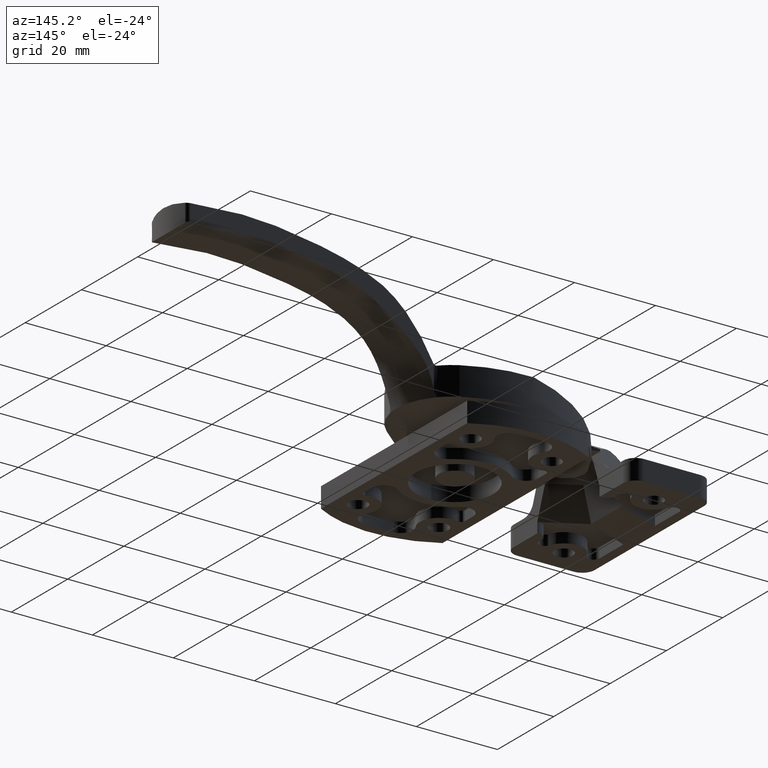
[diagram: clean part render]
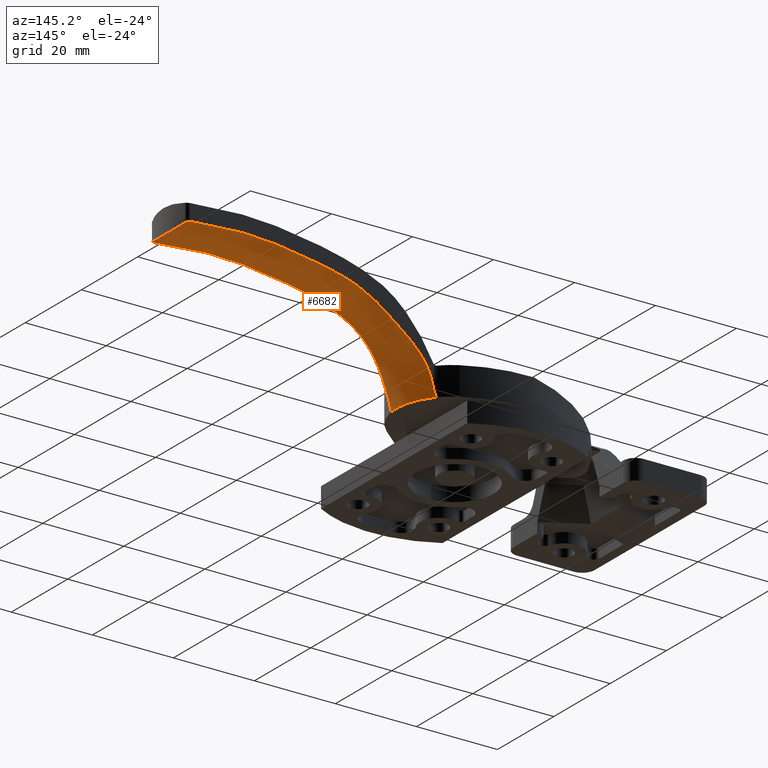
[diagram: same view with one face highlighted and labeled with its STEP entity id]
A machine part, auxiliary view. The second image highlights one B-rep face of the part: STEP entity #6682.
In plain terms, the highlighted face is a freeform B-spline surface patch.
Its self-contained STEP definition (entity closure, byte-faithful):
#4932=CARTESIAN_POINT('',(81.799530053420298,21.879878426017498,29.020201265131700));
#4933=VERTEX_POINT('',#4932);
#4934=CARTESIAN_POINT('',(80.860972180246009,22.487713741084200,29.307454768851098));
#4935=VERTEX_POINT('',#4934);
#4936=CARTESIAN_POINT('',(81.799530053420298,21.879878426017498,29.020201265131700));
#4937=CARTESIAN_POINT('',(81.760981227353696,21.970332895413762,29.050182680863109));
#4938=CARTESIAN_POINT('',(81.710340924425282,22.052974072568020,29.079949348277840));
#4939=CARTESIAN_POINT('',(81.616533039791037,22.165544306079120,29.123896208757891));
#4940=CARTESIAN_POINT('',(81.582081737643961,22.201197568607359,29.138462704300341));
#4941=CARTESIAN_POINT('',(81.509150750982556,22.266320069814569,29.166350664934800));
#4942=CARTESIAN_POINT('',(81.470444523558754,22.296103118384501,29.179790175799969));
#4943=CARTESIAN_POINT('',(81.408974434782465,22.336574926419111,29.199124442122059));
#4944=CARTESIAN_POINT('',(81.387913671884050,22.349362246601110,29.205431186507891));
#4945=CARTESIAN_POINT('',(81.344612890355890,22.373487979565240,29.217750270972601));
#4946=CARTESIAN_POINT('',(81.322273668701555,22.384868293515371,29.223786801371791));
#4947=CARTESIAN_POINT('',(81.254411526538505,22.416285376481710,29.241166216321702));
#4948=CARTESIAN_POINT('',(81.207941880537845,22.433714139366689,29.251825184848201));
#4949=CARTESIAN_POINT('',(81.112558757791916,22.461613587864392,29.271243623499110));
#4950=CARTESIAN_POINT('',(81.063645959581820,22.472086122155329,29.280003740963821));
#4951=CARTESIAN_POINT('',(80.963222592615637,22.485659325675790,29.295466098197569));
#4952=CARTESIAN_POINT('',(80.912149198389955,22.488660602831029,29.302087884052199));
#4953=CARTESIAN_POINT('',(80.860972180246009,22.487713741084200,29.307454768851098));
#4954=B_SPLINE_CURVE_WITH_KNOTS('',3,(#4936,#4937,#4938,#4939,#4940,#4941,#4942,#4943,#4944,#4945,#4946,#4947,#4948,#4949,#4950,#4951,#4952,#4953),.UNSPECIFIED.,.F.,.U.,(4,2,2,2,2,2,2,2,4),(0.0,0.250000000000003,0.375000000000001,0.499999999999998,0.562499999999997,0.624999999999997,0.749999999999998,0.874999999999999,0.999998373961513),.UNSPECIFIED.);
#4955=EDGE_CURVE('',#4933,#4935,#4954,.T.);
#5011=CARTESIAN_POINT('',(80.860971820646995,9.512286265634272,29.307282727309850));
#5012=VERTEX_POINT('',#5011);
#5013=CARTESIAN_POINT('',(81.799530053424490,10.120121573992339,29.020099975869002));
#5014=VERTEX_POINT('',#5013);
#5015=CARTESIAN_POINT('',(80.860971820646995,9.512286265634272,29.307282727309850));
#5016=CARTESIAN_POINT('',(80.963221867046329,9.510394388710735,29.296567377864921));
#5017=CARTESIAN_POINT('',(81.062450017369201,9.523884439569311,29.281239308158341));
#5018=CARTESIAN_POINT('',(81.182936742727335,9.558934499825805,29.256779078056400));
#5019=CARTESIAN_POINT('',(81.206890440248799,9.566897145649270,29.251605666587579));
#5020=CARTESIAN_POINT('',(81.253643641418378,9.584407861842990,29.240900975559651));
#5021=CARTESIAN_POINT('',(81.276543314197227,9.593980998977608,29.235350628578551));
#5022=CARTESIAN_POINT('',(81.343856110783818,9.625083257660752,29.218135299204079));
#5023=CARTESIAN_POINT('',(81.386890417981760,9.648982305320258,29.205908678802871));
#5024=CARTESIAN_POINT('',(81.469323927160886,9.703064695666978,29.180043394041931));
#5025=CARTESIAN_POINT('',(81.508795194345495,9.733392496464512,29.166354036204499));
#5026=CARTESIAN_POINT('',(81.581753480162888,9.798479315668807,29.138478322289970));
#5027=CARTESIAN_POINT('',(81.615571985494711,9.833426006905992,29.124196415468241));
#5028=CARTESIAN_POINT('',(81.677980232785671,9.908073050538729,29.095031735338150));
#5029=CARTESIAN_POINT('',(81.706714202499427,9.948030457222046,29.080058252106891));
#5030=CARTESIAN_POINT('',(81.757849423969148,10.031496104422891,29.050072289181241));
#5031=CARTESIAN_POINT('',(81.780275165843349,10.074940125244360,29.035073928911800));
#5032=CARTESIAN_POINT('',(81.799530053424490,10.120121573992339,29.020099975869002));
#5033=B_SPLINE_CURVE_WITH_KNOTS('',3,(#5015,#5016,#5017,#5018,#5019,#5020,#5021,#5022,#5023,#5024,#5025,#5026,#5027,#5028,#5029,#5030,#5031,#5032),.UNSPECIFIED.,.F.,.U.,(4,2,2,2,2,2,2,2,4),(0.000001619157286,0.249999999999977,0.312499999999980,0.374999999999983,0.499999999999986,0.624999999999990,0.749999999999993,0.874999999999997,1.0),.UNSPECIFIED.);
#5034=EDGE_CURVE('',#5012,#5014,#5033,.T.);
#5090=CARTESIAN_POINT('',(81.799530053424633,10.120121573992311,29.020099975869002));
#5091=CARTESIAN_POINT('',(81.991287089405347,10.570157576312790,28.870630843290289));
#5092=CARTESIAN_POINT('',(82.161721191468004,11.031029257403681,28.736922111889552));
#5093=CARTESIAN_POINT('',(82.458501688908015,11.975481860210239,28.503300483558320));
#5094=CARTESIAN_POINT('',(82.584859079736475,12.459055941503900,28.403374494952882));
#5095=CARTESIAN_POINT('',(82.713353069753197,13.078824484071781,28.301559642959521));
#5096=CARTESIAN_POINT('',(82.737574743611603,13.203545387888781,28.282354098395320));
#5097=CARTESIAN_POINT('',(82.782996875796115,13.454558762937490,28.246319824992860));
#5098=CARTESIAN_POINT('',(82.804157503992059,13.580656690674960,28.229522682369112));
#5099=CARTESIAN_POINT('',(82.862714503661664,13.959185606634390,28.183020452338859));
#5100=CARTESIAN_POINT('',(82.895300566560451,14.212455297789271,28.157114315555511));
#5101=CARTESIAN_POINT('',(82.973663845355929,14.975026259559881,28.094786149213530));
#5102=CARTESIAN_POINT('',(83.000100240903976,15.487119651971360,28.073720514438730));
#5103=CARTESIAN_POINT('',(82.999899189355503,16.518727093693201,28.073880625065922));
#5104=CARTESIAN_POINT('',(82.973274711647079,17.028440453858689,28.095095649959418));
#5105=CARTESIAN_POINT('',(82.869766397366462,18.036342958672009,28.177428365252631));
#5106=CARTESIAN_POINT('',(82.792872818050142,18.534529745058311,28.238554905023960));
#5107=CARTESIAN_POINT('',(82.640634237042050,19.273386770158560,28.359204070113829));
#5108=CARTESIAN_POINT('',(82.583725985085422,19.518266018783880,28.404254444143341));
#5109=CARTESIAN_POINT('',(82.457575098080767,20.005219303651089,28.503941720438739));
#5110=CARTESIAN_POINT('',(82.388143162399345,20.247816299600359,28.558727397071991));
#5111=CARTESIAN_POINT('',(82.163622489588789,20.964093661466411,28.735499321151199));
#5112=CARTESIAN_POINT('',(81.991973768731569,21.428230850774320,28.870180115703651));
#5113=CARTESIAN_POINT('',(81.799530053420298,21.879878426017498,29.020201265131700));
#5114=B_SPLINE_CURVE_WITH_KNOTS('',3,(#5090,#5091,#5092,#5093,#5094,#5095,#5096,#5097,#5098,#5099,#5100,#5101,#5102,#5103,#5104,#5105,#5106,#5107,#5108,#5109,#5110,#5111,#5112,#5113),.UNSPECIFIED.,.F.,.U.,(4,2,2,2,2,2,2,2,2,2,2,4),(0.0,0.125000000000001,0.250000000000002,0.281250000000002,0.312500000000002,0.375000000000001,0.500000000000001,0.625000000000000,0.750000000000000,0.812500000000000,0.874999999999999,1.0),.UNSPECIFIED.);
#5115=EDGE_CURVE('',#5014,#4933,#5114,.T.);
#5195=CARTESIAN_POINT('',(20.165436215506549,21.353610201022200,8.311330445909642));
#5196=VERTEX_POINT('',#5195);
#5202=CARTESIAN_POINT('',(19.476660529880601,21.611194534557349,6.199999999999760));
#5203=VERTEX_POINT('',#5202);
#5204=CARTESIAN_POINT('',(20.165436215506549,21.353610201022200,8.311330445909642));
#5205=CARTESIAN_POINT('',(20.121221977952949,21.352787438105889,8.128054221160355));
#5206=CARTESIAN_POINT('',(20.076226109452559,21.354826843886588,7.945067339260342));
#5207=CARTESIAN_POINT('',(19.982924007024749,21.365841261146020,7.580159138862794));
#5208=CARTESIAN_POINT('',(19.934669746499051,21.374732510873560,7.398148112273264));
#5209=CARTESIAN_POINT('',(19.857184492310950,21.395922249223851,7.126919396716170));
#5210=CARTESIAN_POINT('',(19.830522780999360,21.404305232645200,7.036928322313691));
#5211=CARTESIAN_POINT('',(19.774591163701722,21.424811925135170,6.858210146257458));
#5212=CARTESIAN_POINT('',(19.745359029055582,21.436887191418101,6.769465414549018));
#5213=CARTESIAN_POINT('',(19.698117900982101,21.459575007492528,6.637958290467489));
#5214=CARTESIAN_POINT('',(19.681813468526091,21.467905296071269,6.594449607740731));
#5215=CARTESIAN_POINT('',(19.647725399035838,21.486658466786370,6.508673247423070));
#5216=CARTESIAN_POINT('',(19.629942042224009,21.497069609660400,6.466358793612938));
#5217=CARTESIAN_POINT('',(19.592019374779301,21.521134379121332,6.383544519885958));
#5218=CARTESIAN_POINT('',(19.571775304495969,21.534838567202961,6.342746642678847));
#5219=CARTESIAN_POINT('',(19.538800969302201,21.559376195259048,6.285313868485862));
#5220=CARTESIAN_POINT('',(19.527372706655289,21.568223081873260,6.266804312848052));
#5221=CARTESIAN_POINT('',(19.503208473547328,21.587903038491628,6.231678716443716));
#5222=CARTESIAN_POINT('',(19.490491816460189,21.598707289368519,6.215034979167809));
#5223=CARTESIAN_POINT('',(19.476660529880601,21.611194534557349,6.199999999999760));
#5224=B_SPLINE_CURVE_WITH_KNOTS('',3,(#5204,#5205,#5206,#5207,#5208,#5209,#5210,#5211,#5212,#5213,#5214,#5215,#5216,#5217,#5218,#5219,#5220,#5221,#5222,#5223),.UNSPECIFIED.,.F.,.U.,(4,2,2,2,2,2,2,2,2,4),(0.0,0.249999999999998,0.499999999999997,0.624999999999997,0.749999999999996,0.812499999999997,0.874999999999998,0.937499999999999,0.968749999999999,1.0),.UNSPECIFIED.);
#5225=EDGE_CURVE('',#5196,#5203,#5224,.T.);
#5266=CARTESIAN_POINT('',(22.844383890592649,9.935007135742980,6.199999999999760));
#5267=VERTEX_POINT('',#5266);
#5281=CARTESIAN_POINT('',(23.797038948920950,10.578533195955560,8.846641809814191));
#5282=VERTEX_POINT('',#5281);
#5283=CARTESIAN_POINT('',(22.844383890592649,9.935007135742980,6.199999999999760));
#5284=CARTESIAN_POINT('',(22.862671922049159,9.982946944928033,6.236551867924699));
#5285=CARTESIAN_POINT('',(22.881878126794721,10.022844524131431,6.279192991285920));
#5286=CARTESIAN_POINT('',(22.921179892667130,10.094637550729990,6.370544621492238));
#5287=CARTESIAN_POINT('',(22.941302990605308,10.126301793843490,6.419429693486638));
#5288=CARTESIAN_POINT('',(22.982150316825940,10.184167490034300,6.521345802297041));
#5289=CARTESIAN_POINT('',(23.002574547283491,10.209898956255961,6.573645682171861));
#5290=CARTESIAN_POINT('',(23.043226353650081,10.256819336267821,6.679539466171257));
#5291=CARTESIAN_POINT('',(23.063494506704661,10.278035024012370,6.733246948399775));
#5292=CARTESIAN_POINT('',(23.124177462832520,10.336687626542650,6.896059277170288));
#5293=CARTESIAN_POINT('',(23.164472588317260,10.369211859009880,7.006826396441882));
#5294=CARTESIAN_POINT('',(23.244913767517001,10.425605389118299,7.231266378641605));
#5295=CARTESIAN_POINT('',(23.285142721395118,10.449434087097391,7.345209852808034));
#5296=CARTESIAN_POINT('',(23.405090125713130,10.510495560030680,7.688409469175864));
#5297=CARTESIAN_POINT('',(23.484004238284751,10.537563394837109,7.918729916863612));
#5298=CARTESIAN_POINT('',(23.641002401836161,10.572371181176640,8.381301151216215));
#5299=CARTESIAN_POINT('',(23.719068812972409,10.579928302589909,8.613573532696430));
#5300=CARTESIAN_POINT('',(23.797038948920950,10.578533195955560,8.846641809814191));
#5301=B_SPLINE_CURVE_WITH_KNOTS('',3,(#5283,#5284,#5285,#5286,#5287,#5288,#5289,#5290,#5291,#5292,#5293,#5294,#5295,#5296,#5297,#5298,#5299,#5300),.UNSPECIFIED.,.F.,.U.,(4,2,2,2,2,2,2,2,4),(0.0,0.062500000000000,0.124999999999999,0.187499999999999,0.249999999999998,0.374999999999998,0.499999999999998,0.749999999999999,1.0),.UNSPECIFIED.);
#5302=EDGE_CURVE('',#5267,#5282,#5301,.T.);
#6147=CARTESIAN_POINT('',(19.706569114936499,21.345036212919801,6.200000000000090));
#6148=VERTEX_POINT('',#6147);
#6149=CARTESIAN_POINT('',(22.930462412194451,10.594725290079920,6.200000000000090));
#6150=VERTEX_POINT('',#6149);
#6151=CARTESIAN_POINT('',(19.706569114936499,21.345036212919801,6.200000000000090));
#6152=CARTESIAN_POINT('',(22.244814176507148,18.404848201389012,6.200000000000090));
#6153=CARTESIAN_POINT('',(23.433030752303910,14.446324775911339,6.200000000000090));
#6154=CARTESIAN_POINT('',(22.930462412194451,10.594725290079920,6.200000000000090));
#6155=B_SPLINE_CURVE_WITH_KNOTS('',3,(#6151,#6152,#6153,#6154),.UNSPECIFIED.,.F.,.U.,(4,4),(0.0,11.652748251877521),.UNSPECIFIED.);
#6156=EDGE_CURVE('',#6148,#6150,#6155,.T.);
#6158=CARTESIAN_POINT('',(22.930462412194451,10.594725290079920,6.200000000000090));
#6159=CARTESIAN_POINT('',(22.901769571660338,10.374819238634281,6.199999999999124));
#6160=CARTESIAN_POINT('',(22.873076731126439,10.154913187188630,6.199999999999124));
#6161=CARTESIAN_POINT('',(22.844383890592649,9.935007135742980,6.199999999999760));
#6162=B_SPLINE_CURVE_WITH_KNOTS('',3,(#6158,#6159,#6160,#6161),.UNSPECIFIED.,.F.,.U.,(4,4),(-0.057120785289165,0.0),.UNSPECIFIED.);
#6163=EDGE_CURVE('',#6150,#5267,#6162,.T.);
#6232=CARTESIAN_POINT('',(19.706569114936499,21.345036212919801,6.200000000000090));
#6233=CARTESIAN_POINT('',(19.629932919917291,21.433755653466250,6.199999999999385));
#6234=CARTESIAN_POINT('',(19.553296724898939,21.522475094011789,6.199999999999386));
#6235=CARTESIAN_POINT('',(19.476660529880601,21.611194534557349,6.199999999999760));
#6236=B_SPLINE_CURVE_WITH_KNOTS('',3,(#6232,#6233,#6234,#6235),.UNSPECIFIED.,.F.,.U.,(4,4),(1.0,1.030196162039448),.UNSPECIFIED.);
#6237=EDGE_CURVE('',#6148,#5203,#6236,.T.);
#6286=CARTESIAN_POINT('',(68.0,22.247404897172999,30.199999999999999));
#6287=VERTEX_POINT('',#6286);
#6288=CARTESIAN_POINT('',(80.860972180246009,22.487713741084200,29.307454768851098));
#6289=CARTESIAN_POINT('',(76.583796074107710,22.407794180504659,29.758708079189670));
#6290=CARTESIAN_POINT('',(72.303347901655741,22.327813480964430,30.158707070666100));
#6291=CARTESIAN_POINT('',(68.0,22.247404897172999,30.199999999999999));
#6292=B_SPLINE_CURVE_WITH_KNOTS('',3,(#6288,#6289,#6290,#6291),.UNSPECIFIED.,.F.,.U.,(4,4),(0.030343809796675,0.212362758187019),.UNSPECIFIED.);
#6293=EDGE_CURVE('',#4935,#6287,#6292,.T.);
#6295=CARTESIAN_POINT('',(59.477998425016509,22.088170251642950,29.839830530242850));
#6296=VERTEX_POINT('',#6295);
#6297=CARTESIAN_POINT('',(68.0,22.247404897172999,30.199999999999999));
#6298=CARTESIAN_POINT('',(65.152406536362562,22.194197263754258,30.227134427263930));
#6299=CARTESIAN_POINT('',(62.294786164252208,22.140802276319810,30.097205263357129));
#6300=CARTESIAN_POINT('',(59.477998425016438,22.088170251642978,29.839830530242850));
#6301=B_SPLINE_CURVE_WITH_KNOTS('',3,(#6297,#6298,#6299,#6300),.UNSPECIFIED.,.F.,.U.,(4,4),(0.212362758187019,0.332806734089926),.UNSPECIFIED.);
#6302=EDGE_CURVE('',#6287,#6296,#6301,.T.);
#6304=CARTESIAN_POINT('',(48.322013162826799,21.879719297588000,28.264508447960601));
#6305=VERTEX_POINT('',#6304);
#6306=CARTESIAN_POINT('',(59.477998425016459,22.088170251642978,29.839830530242850));
#6307=CARTESIAN_POINT('',(55.760450756311812,22.018707417112999,29.500151815462569));
#6308=CARTESIAN_POINT('',(52.114026442255962,21.950573531195261,28.938485053891320));
#6309=CARTESIAN_POINT('',(48.322013162826799,21.879719297588000,28.264508447960601));
#6310=B_SPLINE_CURVE_WITH_KNOTS('',3,(#6306,#6307,#6308,#6309),.UNSPECIFIED.,.F.,.U.,(4,4),(0.332806734089926,0.491766607278214),.UNSPECIFIED.);
#6311=EDGE_CURVE('',#6296,#6305,#6310,.T.);
#6313=CARTESIAN_POINT('',(39.153788114213953,21.708409887127250,25.980882600756399));
#6314=VERTEX_POINT('',#6313);
#6315=CARTESIAN_POINT('',(48.322013162826799,21.879719297588000,28.264508447960601));
#6316=CARTESIAN_POINT('',(45.209232653504358,21.821556611668061,27.711255838308290));
#6317=CARTESIAN_POINT('',(41.998348360513369,21.761560844507720,27.082324274233031));
#6318=CARTESIAN_POINT('',(39.153788114213953,21.708409887127250,25.980882600756399));
#6319=B_SPLINE_CURVE_WITH_KNOTS('',3,(#6315,#6316,#6317,#6318),.UNSPECIFIED.,.F.,.U.,(4,4),(0.491766607278214,0.622253279808823),.UNSPECIFIED.);
#6320=EDGE_CURVE('',#6305,#6314,#6319,.T.);
#6322=CARTESIAN_POINT('',(29.761765893005752,21.532918799024849,20.360756911795399));
#6323=VERTEX_POINT('',#6322);
#6324=CARTESIAN_POINT('',(39.153788114213938,21.708409887127232,25.980882600756370));
#6325=CARTESIAN_POINT('',(35.878215650933193,21.647205413564389,24.712548762426490));
#6326=CARTESIAN_POINT('',(33.088389573978183,21.595077170856939,22.817665615586861));
#6327=CARTESIAN_POINT('',(29.761765893005752,21.532918799024849,20.360756911795399));
#6328=B_SPLINE_CURVE_WITH_KNOTS('',3,(#6324,#6325,#6326,#6327),.UNSPECIFIED.,.F.,.U.,(4,4),(0.622253279808823,0.772511497022479),.UNSPECIFIED.);
#6329=EDGE_CURVE('',#6314,#6323,#6328,.T.);
#6331=CARTESIAN_POINT('',(22.123107437368049,21.390189528112799,13.200000000001200));
#6332=VERTEX_POINT('',#6331);
#6333=CARTESIAN_POINT('',(29.761765893005752,21.532918799024849,20.360756911795399));
#6334=CARTESIAN_POINT('',(26.998680012481682,21.481290200170111,18.320054265441851));
#6335=CARTESIAN_POINT('',(23.865261496043640,21.422741890553830,15.891614407892600));
#6336=CARTESIAN_POINT('',(22.123107437368049,21.390189528112799,13.200000000001200));
#6337=B_SPLINE_CURVE_WITH_KNOTS('',3,(#6333,#6334,#6335,#6336),.UNSPECIFIED.,.F.,.U.,(4,4),(0.772511497022479,0.897315622235051),.UNSPECIFIED.);
#6338=EDGE_CURVE('',#6323,#6332,#6337,.T.);
#6340=CARTESIAN_POINT('',(22.123107437368049,21.390189528112799,13.200000000001200));
#6341=CARTESIAN_POINT('',(21.112256259296391,21.371301649765460,11.638219131775269));
#6342=CARTESIAN_POINT('',(20.569810379581540,21.361165981916098,9.987833753725743));
#6343=CARTESIAN_POINT('',(20.165436215506549,21.353610201022200,8.311330445909642));
#6344=B_SPLINE_CURVE_WITH_KNOTS('',3,(#6340,#6341,#6342,#6343),.UNSPECIFIED.,.F.,.U.,(4,4),(0.897315622235051,0.969731750991813),.UNSPECIFIED.);
#6345=EDGE_CURVE('',#6332,#5196,#6344,.T.);
#6412=CARTESIAN_POINT('',(25.380125769199850,10.548953014961819,13.200000000001200));
#6413=VERTEX_POINT('',#6412);
#6414=CARTESIAN_POINT('',(25.380125769199850,10.548953014961819,13.200000000001200));
#6415=CARTESIAN_POINT('',(24.812998627737489,10.559549858594160,11.804744545008370));
#6416=CARTESIAN_POINT('',(24.295785172899159,10.569214058567621,10.338774741653920));
#6417=CARTESIAN_POINT('',(23.797038948920950,10.578533195955560,8.846641809814191));
#6418=B_SPLINE_CURVE_WITH_KNOTS('',3,(#6414,#6415,#6416,#6417),.UNSPECIFIED.,.F.,.U.,(4,4),(0.935307127935637,1.000000000000000),.UNSPECIFIED.);
#6419=EDGE_CURVE('',#6413,#5282,#6418,.T.);
#6421=CARTESIAN_POINT('',(29.761765893008899,10.467081505294120,20.360756911797750));
#6422=VERTEX_POINT('',#6421);
#6423=CARTESIAN_POINT('',(29.761765893008949,10.467081505294100,20.360756911797768));
#6424=CARTESIAN_POINT('',(27.754551199629091,10.504586570185481,18.320054265446512));
#6425=CARTESIAN_POINT('',(26.474463673924468,10.528505170361420,15.891614407896240));
#6426=CARTESIAN_POINT('',(25.380125769199850,10.548953014961819,13.200000000001200));
#6427=B_SPLINE_CURVE_WITH_KNOTS('',3,(#6423,#6424,#6425,#6426),.UNSPECIFIED.,.F.,.U.,(4,4),(0.772511497022479,0.897315622235051),.UNSPECIFIED.);
#6428=EDGE_CURVE('',#6422,#6413,#6427,.T.);
#6430=CARTESIAN_POINT('',(39.153788114213953,10.291590361257860,25.980882600756349));
#6431=VERTEX_POINT('',#6430);
#6432=CARTESIAN_POINT('',(39.153788114213938,10.291590361257880,25.980882600756370));
#6433=CARTESIAN_POINT('',(35.648919212317331,10.357079287796219,24.712548762427499));
#6434=CARTESIAN_POINT('',(32.178356697829017,10.421927195070280,22.817665615589881));
#6435=CARTESIAN_POINT('',(29.761765893008949,10.467081505294100,20.360756911797768));
#6436=B_SPLINE_CURVE_WITH_KNOTS('',3,(#6432,#6433,#6434,#6435),.UNSPECIFIED.,.F.,.U.,(4,4),(0.622253279808823,0.772511497022479),.UNSPECIFIED.);
#6437=EDGE_CURVE('',#6431,#6422,#6436,.T.);
#6439=CARTESIAN_POINT('',(48.322013162828092,10.120280896196039,28.264508447960850));
#6440=VERTEX_POINT('',#6439);
#6441=CARTESIAN_POINT('',(48.322013162828107,10.120280896196030,28.264508447960839));
#6442=CARTESIAN_POINT('',(45.267030148031203,10.177363647029789,27.711255838308769));
#6443=CARTESIAN_POINT('',(42.197473106258002,10.234718715433420,27.082324274233589));
#6444=CARTESIAN_POINT('',(39.153788114213938,10.291590361257880,25.980882600756370));
#6445=B_SPLINE_CURVE_WITH_KNOTS('',3,(#6441,#6442,#6443,#6444),.UNSPECIFIED.,.F.,.U.,(4,4),(0.491766607278214,0.622253279808823),.UNSPECIFIED.);
#6446=EDGE_CURVE('',#6440,#6431,#6445,.T.);
#6448=CARTESIAN_POINT('',(59.477998425016509,9.911829875701960,29.839830530242850));
#6449=VERTEX_POINT('',#6448);
#6450=CARTESIAN_POINT('',(59.477998425016473,9.911829875701953,29.839830530242850));
#6451=CARTESIAN_POINT('',(55.743592718098249,9.981607726985459,29.500151815462669));
#6452=CARTESIAN_POINT('',(52.043617087631830,10.050742247859020,28.938485053891629));
#6453=CARTESIAN_POINT('',(48.322013162828107,10.120280896196030,28.264508447960839));
#6454=B_SPLINE_CURVE_WITH_KNOTS('',3,(#6450,#6451,#6452,#6453),.UNSPECIFIED.,.F.,.U.,(4,4),(0.332806734089926,0.491766607278214),.UNSPECIFIED.);
#6455=EDGE_CURVE('',#6449,#6440,#6454,.T.);
#6457=CARTESIAN_POINT('',(68.0,9.752595179419391,30.199999999999999));
#6458=VERTEX_POINT('',#6457);
#6459=CARTESIAN_POINT('',(67.999999999999929,9.752595179419384,30.200000000000081));
#6460=CARTESIAN_POINT('',(65.156887244565169,9.805719107187448,30.227134427263930));
#6461=CARTESIAN_POINT('',(62.307559508290382,9.858959162672431,30.097205263357129));
#6462=CARTESIAN_POINT('',(59.477998425016473,9.911829875701953,29.839830530242850));
#6463=B_SPLINE_CURVE_WITH_KNOTS('',3,(#6459,#6460,#6461,#6462),.UNSPECIFIED.,.F.,.U.,(4,4),(0.212362758187019,0.332806734089926),.UNSPECIFIED.);
#6464=EDGE_CURVE('',#6458,#6449,#6463,.T.);
#6466=CARTESIAN_POINT('',(80.860971820646995,9.512286265634272,29.307282727309850));
#6467=CARTESIAN_POINT('',(76.580065164025683,9.592275557502292,29.758606863402360));
#6468=CARTESIAN_POINT('',(72.297131419844973,9.672302725762268,30.158703068793660));
#6469=CARTESIAN_POINT('',(68.0,9.752595179419391,30.199999999999999));
#6470=B_SPLINE_CURVE_WITH_KNOTS('',3,(#6466,#6467,#6468,#6469),.UNSPECIFIED.,.F.,.U.,(4,4),(0.0,0.182042449750971),.UNSPECIFIED.);
#6471=EDGE_CURVE('',#5012,#6458,#6470,.T.);
#6587=CARTESIAN_POINT('',(83.352669534013160,8.660384540932622,29.297540367865420));
#6588=CARTESIAN_POINT('',(83.352685486915590,8.928832253592155,29.212380156891939));
#6589=CARTESIAN_POINT('',(83.352701439818034,9.197279966251694,29.127219945918469));
#6590=CARTESIAN_POINT('',(83.352968764263650,13.695681769201940,27.700181771627570));
#6591=CARTESIAN_POINT('',(83.352861913578110,18.473615638115461,27.700217382679021));
#6592=CARTESIAN_POINT('',(83.352406784752191,22.844663545724782,29.141478786425349));
#6593=CARTESIAN_POINT('',(83.352391303836072,23.000230812629230,29.189881138469691));
#6594=CARTESIAN_POINT('',(78.242219031294653,8.768201618355205,29.844977345066791));
#6595=CARTESIAN_POINT('',(78.242004190413539,9.032544426086000,29.760160470131400));
#6596=CARTESIAN_POINT('',(78.241789349532340,9.296887233816786,29.675343595196040));
#6597=CARTESIAN_POINT('',(78.238189238535924,13.726502791585141,28.254058737241021));
#6598=CARTESIAN_POINT('',(78.239628217777607,18.439411887138441,28.254094204721230));
#6599=CARTESIAN_POINT('',(78.245757527377592,22.744570733443538,29.689544949069749));
#6600=CARTESIAN_POINT('',(78.245966011925987,22.897805832433392,29.737752159843410));
#6601=CARTESIAN_POINT('',(70.300809676333074,8.935751867118151,30.714460938033099));
#6602=CARTESIAN_POINT('',(70.300210195789518,9.193713864277658,30.630178942893949));
#6603=CARTESIAN_POINT('',(70.299610715246075,9.451675861437172,30.545896947754859));
#6604=CARTESIAN_POINT('',(70.289565157410777,13.774367627153060,29.133575124052410));
#6605=CARTESIAN_POINT('',(70.293580408387996,18.386166554030599,29.133610367864410));
#6606=CARTESIAN_POINT('',(70.310683307197735,22.589045436099600,30.560008743775001));
#6607=CARTESIAN_POINT('',(70.311265051369062,22.738659982049199,30.607911945905361));
#6608=CARTESIAN_POINT('',(58.542997850578558,9.183105081542546,30.176590904864810));
#6609=CARTESIAN_POINT('',(58.544353938759123,9.431811542938787,30.092969604361869));
#6610=CARTESIAN_POINT('',(58.545710026939780,9.680518004335026,30.009348303858921));
#6611=CARTESIAN_POINT('',(58.568434137665022,13.848113974227520,28.608097806267448));
#6612=CARTESIAN_POINT('',(58.559351216707157,18.316487492418901,28.608132773799831));
#6613=CARTESIAN_POINT('',(58.520662656783671,22.357379325293198,30.023349476157819));
#6614=CARTESIAN_POINT('',(58.519346690146492,22.501290460081488,30.070877160496369));
#6615=CARTESIAN_POINT('',(49.026005629185100,9.389861526265932,28.745084594130802));
#6616=CARTESIAN_POINT('',(49.019466507843497,9.629072103951971,28.655864773268799));
#6617=CARTESIAN_POINT('',(49.012927386501822,9.868282681638004,28.566644952406840));
#6618=CARTESIAN_POINT('',(48.903350649872401,13.876755323223939,27.071579489110832));
#6619=CARTESIAN_POINT('',(48.947148924297970,18.247454361368309,27.071616797750568));
#6620=CARTESIAN_POINT('',(49.133706989982990,22.173593530821812,28.581583515629990));
#6621=CARTESIAN_POINT('',(49.140052643344802,22.313471546944651,28.632293220659250));
#6622=CARTESIAN_POINT('',(38.600741898686501,9.594058833581601,26.585860286409549));
#6623=CARTESIAN_POINT('',(38.621431926190098,9.829627326886438,26.509938862945351));
#6624=CARTESIAN_POINT('',(38.642121953693717,10.065195820191290,26.434017439481110));
#6625=CARTESIAN_POINT('',(38.988826897090298,14.012637782858000,25.161794551685691));
#6626=CARTESIAN_POINT('',(38.850247498554850,18.233639986637609,25.161826299396100));
#6627=CARTESIAN_POINT('',(38.259970715424927,21.957169736397692,26.446729379198690));
#6628=CARTESIAN_POINT('',(38.239892827934462,22.089968593423801,26.489880698626148));
#6629=CARTESIAN_POINT('',(29.066868799216252,9.836186519868557,21.496329457453410));
#6630=CARTESIAN_POINT('',(29.143151051906489,10.049387585179611,21.412146334286820));
#6631=CARTESIAN_POINT('',(29.219433304596730,10.262588650490640,21.327963211120242));
#6632=CARTESIAN_POINT('',(30.497702306265300,13.835217422041771,19.917298194952391));
#6633=CARTESIAN_POINT('',(31.062670362505688,17.914653729625339,19.917333397419540));
#6634=CARTESIAN_POINT('',(30.750696320617362,21.829402169915770,21.342058452464549));
#6635=CARTESIAN_POINT('',(30.741256590619070,21.968362837769629,21.389905458914221));
#6636=CARTESIAN_POINT('',(25.295614776588451,9.787717648618079,13.745904464430071));
#6637=CARTESIAN_POINT('',(25.320370141412418,10.041526579812750,13.762643831793101));
#6638=CARTESIAN_POINT('',(25.345125506236421,10.295335511007449,13.779383199156131));
#6639=CARTESIAN_POINT('',(25.759954593829011,14.548434739037960,14.059886452582440));
#6640=CARTESIAN_POINT('',(24.148392663566021,18.725036548203459,14.059879452758629));
#6641=CARTESIAN_POINT('',(20.936922458136621,21.576691154849819,13.776580435204661));
#6642=CARTESIAN_POINT('',(20.826111637415419,21.680128056957589,13.767066311850060));
#6643=CARTESIAN_POINT('',(23.539574705566569,9.841189499914059,8.345995541439866));
#6644=CARTESIAN_POINT('',(23.569660507315010,10.088012159024840,8.350288846568214));
#6645=CARTESIAN_POINT('',(23.599746309063509,10.334834818135651,8.354582151696551));
#6646=CARTESIAN_POINT('',(24.103897897359619,14.470864346706470,8.426525495213285));
#6647=CARTESIAN_POINT('',(22.774151414705312,18.597592959877339,8.426523699901741));
#6648=CARTESIAN_POINT('',(19.955525940509322,21.565783544132739,8.353863300106442));
#6649=CARTESIAN_POINT('',(19.858425598088310,21.673042530654211,8.351423122189068));
#6650=CARTESIAN_POINT('',(22.720591085595359,9.865092023730822,5.851975799048398));
#6651=CARTESIAN_POINT('',(22.752763497530221,10.109009124439231,5.851274104184835));
#6652=CARTESIAN_POINT('',(22.784935909465069,10.352926225147639,5.850572409321274));
#6653=CARTESIAN_POINT('',(23.324052967351239,14.440267005574690,5.838814038298463));
#6654=CARTESIAN_POINT('',(22.108097077727631,18.545031272370711,5.838814331722959));
#6655=CARTESIAN_POINT('',(19.448946563282309,21.559242238707860,5.850689897935142));
#6656=CARTESIAN_POINT('',(19.357410853021150,21.668006410201532,5.851088718950563));
#6657=B_SPLINE_SURFACE_WITH_KNOTS('',3,3,((#6587,#6594,#6601,#6608,#6615,#6622,#6629,#6636,#6643,#6650),(#6588,#6595,#6602,#6609,#6616,#6623,#6630,#6637,#6644,#6651),(#6589,#6596,#6603,#6610,#6617,#6624,#6631,#6638,#6645,#6652),(#6590,#6597,#6604,#6611,#6618,#6625,#6632,#6639,#6646,#6653),(#6591,#6598,#6605,#6612,#6619,#6626,#6633,#6640,#6647,#6654),(#6592,#6599,#6606,#6613,#6620,#6627,#6634,#6641,#6648,#6655),(#6593,#6600,#6607,#6614,#6621,#6628,#6635,#6642,#6649,#6656)),.UNSPECIFIED.,.F.,.F.,.U.,(4,2,1,4),(4,1,1,1,1,1,1,4),(0.0,0.844063686718663,14.144047988038650,14.632424259103660),(0.0,17.848867852486318,27.739192226203759,40.792271024470303,51.507257042659518,63.845794498924953,74.094154969235447,82.937427523136222),.UNSPECIFIED.);
#6658=ORIENTED_EDGE('',*,*,#6471,.T.);
#6659=ORIENTED_EDGE('',*,*,#6464,.T.);
#6660=ORIENTED_EDGE('',*,*,#6455,.T.);
#6661=ORIENTED_EDGE('',*,*,#6446,.T.);
#6662=ORIENTED_EDGE('',*,*,#6437,.T.);
#6663=ORIENTED_EDGE('',*,*,#6428,.T.);
#6664=ORIENTED_EDGE('',*,*,#6419,.T.);
#6665=ORIENTED_EDGE('',*,*,#5302,.F.);
#6666=ORIENTED_EDGE('',*,*,#6163,.F.);
#6667=ORIENTED_EDGE('',*,*,#6156,.F.);
#6668=ORIENTED_EDGE('',*,*,#6237,.T.);
#6669=ORIENTED_EDGE('',*,*,#5225,.F.);
#6670=ORIENTED_EDGE('',*,*,#6345,.F.);
#6671=ORIENTED_EDGE('',*,*,#6338,.F.);
#6672=ORIENTED_EDGE('',*,*,#6329,.F.);
#6673=ORIENTED_EDGE('',*,*,#6320,.F.);
#6674=ORIENTED_EDGE('',*,*,#6311,.F.);
#6675=ORIENTED_EDGE('',*,*,#6302,.F.);
#6676=ORIENTED_EDGE('',*,*,#6293,.F.);
#6677=ORIENTED_EDGE('',*,*,#4955,.F.);
#6678=ORIENTED_EDGE('',*,*,#5115,.F.);
#6679=ORIENTED_EDGE('',*,*,#5034,.F.);
#6680=EDGE_LOOP('',(#6658,#6659,#6660,#6661,#6662,#6663,#6664,#6665,#6666,#6667,#6668,#6669,#6670,#6671,#6672,#6673,#6674,#6675,#6676,#6677,#6678,#6679));
#6681=FACE_OUTER_BOUND('',#6680,.T.);
#6682=ADVANCED_FACE('',(#6681),#6657,.F.);